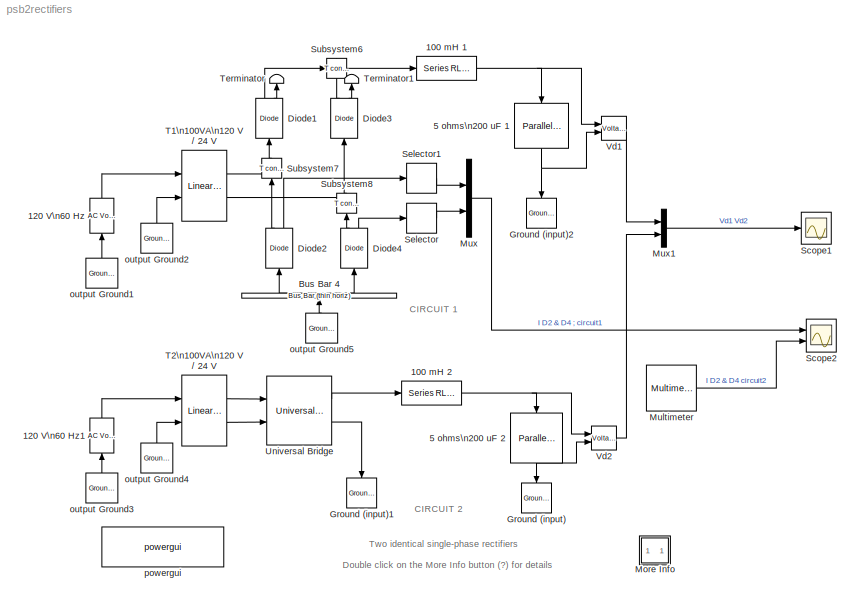
MODEL psb2rectifiers
KIND model
CONFIG InitFcn = powericon('psbinitsys',bdroot);
BLOCK [Reference] 100 mH 1  REF=powerlib2/Elements/Series RLC Branch
  PSBOutputType = 1
  Ports = [1, 1]
  SourceBlock = powerlib2/Elements/Series RLC Branch
  SourceType = Series RLC Branch
  Tag = PoWeRsYsTeMbLoCk
  a = 0
  b = 100e-03
  c = inf
  mesure = None
BLOCK [Reference] 100 mH 2  REF=powerlib2/Elements/Series RLC Branch
  PSBOutputType = 1
  Ports = [1, 1]
  SourceBlock = powerlib2/Elements/Series RLC Branch
  SourceType = Series RLC Branch
  Tag = PoWeRsYsTeMbLoCk
  a = 0
  b = 100e-03
  c = inf
  mesure = None
BLOCK [Reference] 120 V\n60 Hz  REF=powerlib2/Electrical\nSources/AC Voltage Source
  A = 120*sqrt(2)
  F = 60
  P = 0
  PSBOutputType = 1
  Ports = [1, 1]
  SourceBlock = powerlib2/Electrical\nSources/AC Voltage Source
  SourceType = AC Voltage Source
  Tag = PoWeRsYsTeMbLoCk
  mesure = None
  stime = 0
BLOCK [Reference] 120 V\n60 Hz1  REF=powerlib2/Electrical\nSources/AC Voltage Source
  A = 120*sqrt(2)
  F = 60
  P = 0
  PSBOutputType = 1
  Ports = [1, 1]
  SourceBlock = powerlib2/Electrical\nSources/AC Voltage Source
  SourceType = AC Voltage Source
  Tag = PoWeRsYsTeMbLoCk
  mesure = None
  stime = 0
BLOCK [Reference] 5 ohms\n200 uF 1  REF=powerlib2/Elements/Parallel RLC Branch
  PSBOutputType = 1
  Ports = [1, 1]
  SourceBlock = powerlib2/Elements/Parallel RLC Branch
  SourceType = Parallel RLC Branch
  Tag = PoWeRsYsTeMbLoCk
  a = 5
  b = inf
  c = 200e-06
  mesure = None
BLOCK [Reference] 5 ohms\n200 uF 2  REF=powerlib2/Elements/Parallel RLC Branch
  PSBOutputType = 1
  Ports = [1, 1]
  SourceBlock = powerlib2/Elements/Parallel RLC Branch
  SourceType = Parallel RLC Branch
  Tag = PoWeRsYsTeMbLoCk
  a = 5
  b = inf
  c = 200e-06
  mesure = None
BLOCK [Reference] Bus Bar 4  REF=powerlib2/Connectors/Bus Bar (thin horiz)
  PSBOutputType = 111111111111111111111111111111111111111111111111111111111111111111111111111111111111
  Ports = [1, 2]
  SourceBlock = powerlib2/Connectors/Bus Bar (thin horiz)
  SourceType = Bus Bar
  Tag = PoWeRsYsTeMbLoCk
  input = 1
  output = 2
BLOCK [Reference] Diode1  REF=powerlib2/Power\nElectronics/Diode
  Cs = 0.1e-6
  IC = 0
  Lon = 0
  PSBOutputType = 10
  Ports = [1, 2]
  Ron = 0.01
  Rs = 250
  SourceBlock = powerlib2/Power\nElectronics/Diode
  SourceType = Diode
  Tag = PoWeRsYsTeMbLoCk
  Vf = 0.8
BLOCK [Reference] Diode2  REF=powerlib2/Power\nElectronics/Diode
  Cs = 0.1e-6
  IC = 0
  Lon = 0
  PSBOutputType = 10
  Ports = [1, 2]
  Ron = 0.01
  Rs = 250
  SourceBlock = powerlib2/Power\nElectronics/Diode
  SourceType = Diode
  Tag = PoWeRsYsTeMbLoCk
  Vf = 0.8
BLOCK [Reference] Diode3  REF=powerlib2/Power\nElectronics/Diode
  Cs = 0.1e-6
  IC = 0
  Lon = 0
  PSBOutputType = 10
  Ports = [1, 2]
  Ron = 0.01
  Rs = 250
  SourceBlock = powerlib2/Power\nElectronics/Diode
  SourceType = Diode
  Tag = PoWeRsYsTeMbLoCk
  Vf = 0.8
BLOCK [Reference] Diode4  REF=powerlib2/Power\nElectronics/Diode
  Cs = 0.1e-6
  IC = 0
  Lon = 0
  PSBOutputType = 10
  Ports = [1, 2]
  Ron = 0.01
  Rs = 250
  SourceBlock = powerlib2/Power\nElectronics/Diode
  SourceType = Diode
  Tag = PoWeRsYsTeMbLoCk
  Vf = 0.8
BLOCK [Reference] Ground (input)  REF=powerlib2/Connectors/Ground (input)
  Ports = [1]
  SourceBlock = powerlib2/Connectors/Ground (input)
  SourceType = Ground
  Tag = PoWeRsYsTeMbLoCk
BLOCK [Reference] Ground (input)1  REF=powerlib2/Connectors/Ground (input)
  Ports = [1]
  SourceBlock = powerlib2/Connectors/Ground (input)
  SourceType = Ground
  Tag = PoWeRsYsTeMbLoCk
BLOCK [Reference] Ground (input)2  REF=powerlib2/Connectors/Ground (input)
  Ports = [1]
  SourceBlock = powerlib2/Connectors/Ground (input)
  SourceType = Ground
  Tag = PoWeRsYsTeMbLoCk
BLOCK [SubSystem] More Info
  MaskDisplay = disp('?')
  MaskIconFrame = on
  MaskIconOpaque = on
  MaskIconRotate = none
  MaskIconUnits = autoscale
  MinAlgLoopOccurrences = off
  Ports = []
  RTWSystemCode = Auto
  TreatAsAtomicUnit = off
BLOCK [Reference] Multimeter  REF=powerlib2/Measurements/Multimeter
  AxesSetting = [0,0.1,-100,100]
  Display = 0
  Gain = [1 1]
  L = 4
  OutputType = Magnitude
  PSBOutputType = 1
  PSBequivalent = 0
  PhasorSimulation = off
  Ports = [0, 1]
  SavedBlockNames = -11
  SourceBlock = powerlib2/Measurements/Multimeter
  SourceType = MultimeterPSB
  Tag = PoWeRsYsTeMmEaSuReMeNt
  sel = [2 4]
  yselected = {'Isw2: Universal Bridge','Isw4: Universal Bridge'};
BLOCK [Mux] Mux
  Inputs = 2
  Ports = [2, 1]
BLOCK [Mux] Mux1
  DisplayOption = bar
  Inputs = 2
  Ports = [2, 1]
BLOCK [Scope] Scope1
  DataFormat = Array
  LimitDataPoints = off
  NumInputPorts = 1
  Ports = [1]
  SampleInput = on
  SampleTime = 10e-6
  SaveName = V2X
  TimeRange = 0.1
  YMax = 20
  YMin = 0
  ZoomMode = xonly
BLOCK [Scope] Scope2
  DataFormat = Array
  LimitDataPoints = off
  NumInputPorts = 2
  Ports = [2]
  SampleInput = on
  SampleTime = 10e-6
  SaveName = V2X
  TimeRange = 0.1
  YMax = 4~4
  YMin = 0~0
  ZoomMode = xonly
BLOCK [Selector] Selector
  InputPortWidth = 2
  Ports = [1, 1]
BLOCK [Selector] Selector1
  InputPortWidth = 2
  Ports = [1, 1]
BLOCK [Reference] Subsystem6  REF=powerlib2/Connectors/T connector
  PSBOutputType = 1
  Ports = [1, 1, 1]
  SourceBlock = powerlib2/Connectors/T connector
  SourceType = Bus Bar
  Tag = PoWeRsYsTeMbLoCk
BLOCK [Reference] Subsystem7  REF=powerlib2/Connectors/T connector
  PSBOutputType = 1
  Ports = [1, 1, 1]
  SourceBlock = powerlib2/Connectors/T connector
  SourceType = Bus Bar
  Tag = PoWeRsYsTeMbLoCk
BLOCK [Reference] Subsystem8  REF=powerlib2/Connectors/T connector
  PSBOutputType = 1
  Ports = [1, 1, 1]
  SourceBlock = powerlib2/Connectors/T connector
  SourceType = Bus Bar
  Tag = PoWeRsYsTeMbLoCk
BLOCK [Reference] T1\n100VA\n120 V // 24 V  REF=powerlib2/Elements/Linear Transformer
  PSBOutputType = 1111
  Ports = [2, 2]
  SourceBlock = powerlib2/Elements/Linear Transformer
  SourceType = Linear Transformer
  Tag = PoWeRsYsTeMbLoCk
  a = [100 60]
  b = [120 0.03 0.02]
  c = [24 0.03 0.02]
  d = [24 0.03 0.02]
  e = [25 25]
  mesure = None
  w3check = off
BLOCK [Reference] T2\n100VA\n120 V // 24 V  REF=powerlib2/Elements/Linear Transformer
  PSBOutputType = 1111
  Ports = [2, 2]
  SourceBlock = powerlib2/Elements/Linear Transformer
  SourceType = Linear Transformer
  Tag = PoWeRsYsTeMbLoCk
  a = [100 60]
  b = [120 0.03 0.02]
  c = [24 0.03 0.02]
  d = [24 0.03 0.02]
  e = [25 25]
  mesure = None
  w3check = off
BLOCK [Terminator] Terminator
BLOCK [Terminator] Terminator1
BLOCK [Reference] Universal Bridge  REF=powerlib2/Power\nElectronics/Universal Bridge
  Lon = 0
  PSBOutputType = 111
  Ports = [2, 2]
  Ron = 0.01
  SourceBlock = powerlib2/Power\nElectronics/Universal Bridge
  SourceType = Universal Bridge
  Tag = PoWeRsYsTeMbLoCk
  VFs = [  0.8  0.8  ]
  Vf = 0.8
  arms = 2
  cf = 0.1e-6
  confi = ABC as input terminals
  device = Diodes
  gtoparameters = [ 10e-6 , 20e-6 ]
  igbtparameters = [ 1e-6 , 2e-6 ]
  injcc = 250
  mesure = Device currents
BLOCK [Reference] Vd1  REF=powerlib2/Measurements/Voltage Measurement
  OutputType = Magnitude
  PSBOutputType = 0
  PSBequivalent = 0
  PhasorSimulation = off
  Ports = [2, 1]
  SourceBlock = powerlib2/Measurements/Voltage Measurement
  SourceType = Voltage Measurement
  Tag = PoWeRsYsTeMmEaSuReMeNt
BLOCK [Reference] Vd2  REF=powerlib2/Measurements/Voltage Measurement
  OutputType = Magnitude
  PSBOutputType = 0
  PSBequivalent = 0
  PhasorSimulation = off
  Ports = [2, 1]
  SourceBlock = powerlib2/Measurements/Voltage Measurement
  SourceType = Voltage Measurement
  Tag = PoWeRsYsTeMmEaSuReMeNt
BLOCK [Reference] output Ground1  REF=powerlib2/Connectors/Ground (output)
  PSBOutputType = 1
  Ports = [0, 1]
  SourceBlock = powerlib2/Connectors/Ground (output)
  SourceType = Ground
  Tag = PoWeRsYsTeMbLoCk
BLOCK [Reference] output Ground2  REF=powerlib2/Connectors/Ground (output)
  PSBOutputType = 1
  Ports = [0, 1]
  SourceBlock = powerlib2/Connectors/Ground (output)
  SourceType = Ground
  Tag = PoWeRsYsTeMbLoCk
BLOCK [Reference] output Ground3  REF=powerlib2/Connectors/Ground (output)
  PSBOutputType = 1
  Ports = [0, 1]
  SourceBlock = powerlib2/Connectors/Ground (output)
  SourceType = Ground
  Tag = PoWeRsYsTeMbLoCk
BLOCK [Reference] output Ground4  REF=powerlib2/Connectors/Ground (output)
  PSBOutputType = 1
  Ports = [0, 1]
  SourceBlock = powerlib2/Connectors/Ground (output)
  SourceType = Ground
  Tag = PoWeRsYsTeMbLoCk
BLOCK [Reference] output Ground5  REF=powerlib2/Connectors/Ground (output)
  PSBOutputType = 1
  Ports = [0, 1]
  SourceBlock = powerlib2/Connectors/Ground (output)
  SourceType = Ground
  Tag = PoWeRsYsTeMbLoCk
BLOCK [Reference] powergui  REF=powerlib2/powergui
  DisplayStyle = off
  Frange = [0:2:500]
  FreqAxis = off
  MaxFrequency = 1000
  Ports = []
  RmsSteady = 1
  SourceBlock = powerlib2/powergui
  SourceType = PSB option menu block
  StartTime = 0.0
  Ts = 50e-6
  Xlog = on
  Ylog = off
  ZoomFFT = on
  cycles = 1
  display = off
  echomessages = off
  frequency = 60
  frequencyindice = 1
  frequencyindicesteady = 1
  fundamental = 60
  methode = off
  save = off
  variable = ZData
ANNOTATION (root): CIRCUIT 1
ANNOTATION (root): CIRCUIT 2
ANNOTATION (root): Double click on the More Info button (?) for details
ANNOTATION (root): Two identical single-phase rectifiers
ANNOTATION More Info: Circuit Description
ANNOTATION More Info: Demonstration
ANNOTATION More Info: G. Sybille (Hydro-Quebec)
ANNOTATION More Info: Open the Universal Bridge dialog box and notice that in order to obtain a four-diode bridge configuration,\nthe Power electronic devices field has been set to 'Diodes' and that the number of arms has been set to 2. \nAlso, observe that the Measurements field has been set to 'Device currents', thus allowing\nmeasurement of diode currents through the Multimeter block.\n\nNow, double click on the Mul...<+928ch>
ANNOTATION More Info: This demonstration illustrates use of the Universal Bridge, Multimeter,\nand Discrete System blocks
ANNOTATION More Info: This system contains two identical circuits showing the operation of a single phase rectifier.\n \nThe rectifiers are fed by a 120 V/ 24 V linear transformer. The rectified voltage is filtered by a\n100 mH / 200 uF filter and applied to a 5 ohm resistive load.\nThe load voltages are measured by two Voltage Measurement blocks Vd1 and Vd2.\n\nThe top circuit (circuit 1) uses four individual diodes c...<+364ch>
NET 100 mH 1:1 -> 5 ohms\n200 uF 1:1, Vd1:1
NET 100 mH 2:1 -> 5 ohms\n200 uF 2:1, Vd2:1
LINE 120 V\n60 Hz1:1 -> T2\n100VA\n120 V // 24 V:1
LINE 120 V\n60 Hz:1 -> T1\n100VA\n120 V // 24 V:1
NET 5 ohms\n200 uF 1:1 -> Ground (input)2:1, Vd1:2
NET 5 ohms\n200 uF 2:1 -> Ground (input):1, Vd2:2
LINE Bus Bar 4:1 -> Diode2:1
LINE Bus Bar 4:2 -> Diode4:1
LINE Diode1:1 -> Subsystem6:1
LINE Diode1:2 -> Terminator:1
LINE Diode2:1 -> Subsystem7:1
LINE Diode2:2 -> Selector1:1
LINE Diode3:1 -> Subsystem6:enable
LINE Diode3:2 -> Terminator1:1
LINE Diode4:1 -> Subsystem8:1
LINE Diode4:2 -> Selector:1
LINE Multimeter:1 -> Scope2:2
LINE Mux1:1 -> Scope1:1
LINE Mux:1 -> Scope2:1
LINE Selector1:1 -> Mux:1
LINE Selector:1 -> Mux:2
LINE Subsystem6:1 -> 100 mH 1:1
LINE Subsystem7:1 -> Diode1:1
LINE Subsystem8:1 -> Diode3:1
LINE T1\n100VA\n120 V // 24 V:1 -> Subsystem7:enable
LINE T1\n100VA\n120 V // 24 V:2 -> Subsystem8:enable
LINE T2\n100VA\n120 V // 24 V:1 -> Universal Bridge:1
LINE T2\n100VA\n120 V // 24 V:2 -> Universal Bridge:2
LINE Universal Bridge:1 -> 100 mH 2:1
LINE Universal Bridge:2 -> Ground (input)1:1
LINE Vd1:1 -> Mux1:1
LINE Vd2:1 -> Mux1:2
LINE output Ground1:1 -> 120 V\n60 Hz:1
LINE output Ground2:1 -> T1\n100VA\n120 V // 24 V:2
LINE output Ground3:1 -> 120 V\n60 Hz1:1
LINE output Ground4:1 -> T2\n100VA\n120 V // 24 V:2
LINE output Ground5:1 -> Bus Bar 4:1
note: NET lines group one-source signal fan-out (src -> all destinations, sorted); 1:1 wires keep LINE
